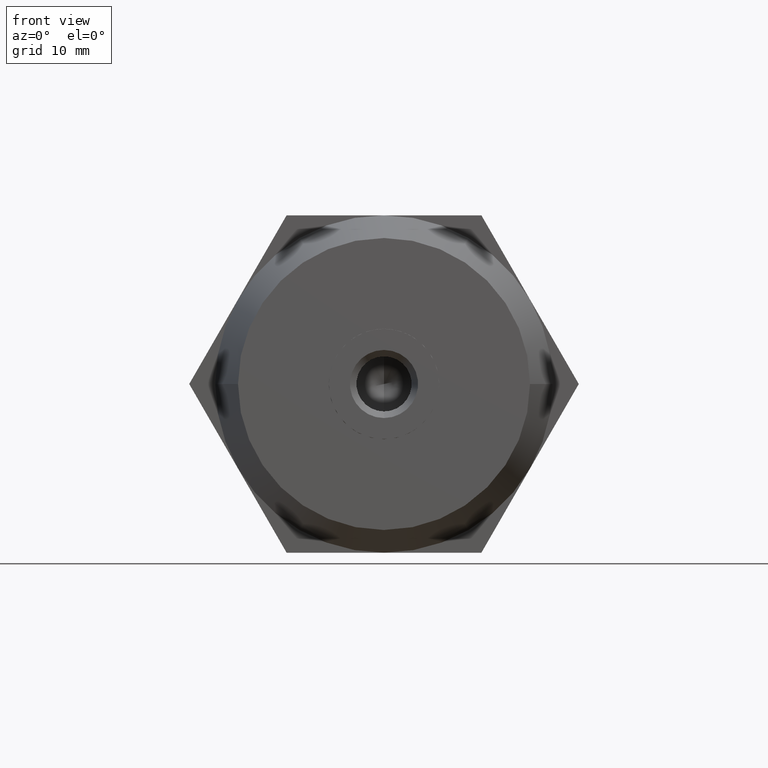
[diagram: clean part render]
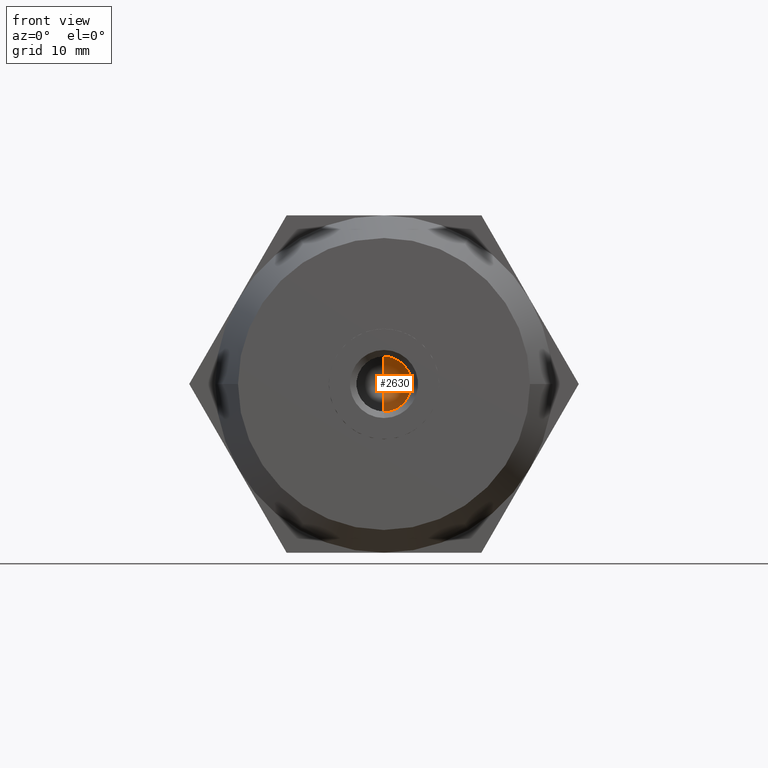
[diagram: same view with one face highlighted and labeled with its STEP entity id]
A machine part, front view. The second image highlights one B-rep face of the part: STEP entity #2630.
In plain terms, the highlighted conical surface has half-angle 59 deg.
Its self-contained STEP definition (entity closure, byte-faithful):
#238 = EDGE_LOOP ( 'NONE', ( #3679, #4953, #4767 ) ) ;
#282 = EDGE_CURVE ( 'NONE', #4772, #1167, #4107, .T. ) ;
#469 = CONICAL_SURFACE ( 'NONE', #2769, 4.250000000000000000, 1.029744258676653600 ) ;
#517 = DIRECTION ( 'NONE',  ( 0.0000000000000000000, 1.000000000000000000, 0.0000000000000000000 ) ) ;
#639 = VECTOR ( 'NONE', #2731, 999.9999999999998900 ) ;
#810 = CARTESIAN_POINT ( 'NONE',  ( 0.0000000000000000000, 3.050000000000000300, 0.0000000000000000000 ) ) ;
#861 = AXIS2_PLACEMENT_3D ( 'NONE', #3411, #5003, #1806 ) ;
#1167 = VERTEX_POINT ( 'NONE', #2535 ) ;
#1669 = DIRECTION ( 'NONE',  ( 0.0000000000000000000, 0.5150380749100549300, 0.8571673007021118900 ) ) ;
#1806 = DIRECTION ( 'NONE',  ( 0.0000000000000000000, 0.0000000000000000000, 1.000000000000000000 ) ) ;
#2230 = VECTOR ( 'NONE', #1669, 999.9999999999998900 ) ;
#2355 = LINE ( 'NONE', #4420, #2230 ) ;
#2493 = DIRECTION ( 'NONE',  ( 0.0000000000000000000, 0.0000000000000000000, 1.000000000000000000 ) ) ;
#2535 = CARTESIAN_POINT ( 'NONE',  ( 5.204748896376250700E-016, 3.050000000000000300, -4.250000000000000000 ) ) ;
#2630 = ADVANCED_FACE ( 'NONE', ( #4512 ), #469, .F. ) ;
#2731 = DIRECTION ( 'NONE',  ( 1.049727191138618200E-016, 0.5150380749100549300, -0.8571673007021118900 ) ) ;
#2769 = AXIS2_PLACEMENT_3D ( 'NONE', #810, #517, #2493 ) ;
#3116 = CARTESIAN_POINT ( 'NONE',  ( 5.204748896376250700E-016, 3.050000000000000300, -4.250000000000000000 ) ) ;
#3263 = EDGE_CURVE ( 'NONE', #4390, #1167, #5011, .T. ) ;
#3411 = CARTESIAN_POINT ( 'NONE',  ( 0.0000000000000000000, 3.050000000000000300, 0.0000000000000000000 ) ) ;
#3679 = ORIENTED_EDGE ( 'NONE', *, *, #282, .F. ) ;
#4045 = CARTESIAN_POINT ( 'NONE',  ( 0.0000000000000000000, 3.050000000000000300, 4.250000000000000000 ) ) ;
#4107 = LINE ( 'NONE', #3116, #639 ) ;
#4257 = EDGE_CURVE ( 'NONE', #4772, #4390, #2355, .T. ) ;
#4390 = VERTEX_POINT ( 'NONE', #4045 ) ;
#4420 = CARTESIAN_POINT ( 'NONE',  ( 0.0000000000000000000, 3.050000000000000300, 4.250000000000000000 ) ) ;
#4512 = FACE_OUTER_BOUND ( 'NONE', #238, .T. ) ;
#4767 = ORIENTED_EDGE ( 'NONE', *, *, #3263, .T. ) ;
#4772 = VERTEX_POINT ( 'NONE', #5078 ) ;
#4953 = ORIENTED_EDGE ( 'NONE', *, *, #4257, .T. ) ;
#5003 = DIRECTION ( 'NONE',  ( 0.0000000000000000000, 1.000000000000000000, 0.0000000000000000000 ) ) ;
#5011 = CIRCLE ( 'NONE', #861, 4.250000000000000000 ) ;
#5078 = CARTESIAN_POINT ( 'NONE',  ( -4.042230298373044700E-015, 0.4963423691328700000, 0.0000000000000000000 ) ) ;